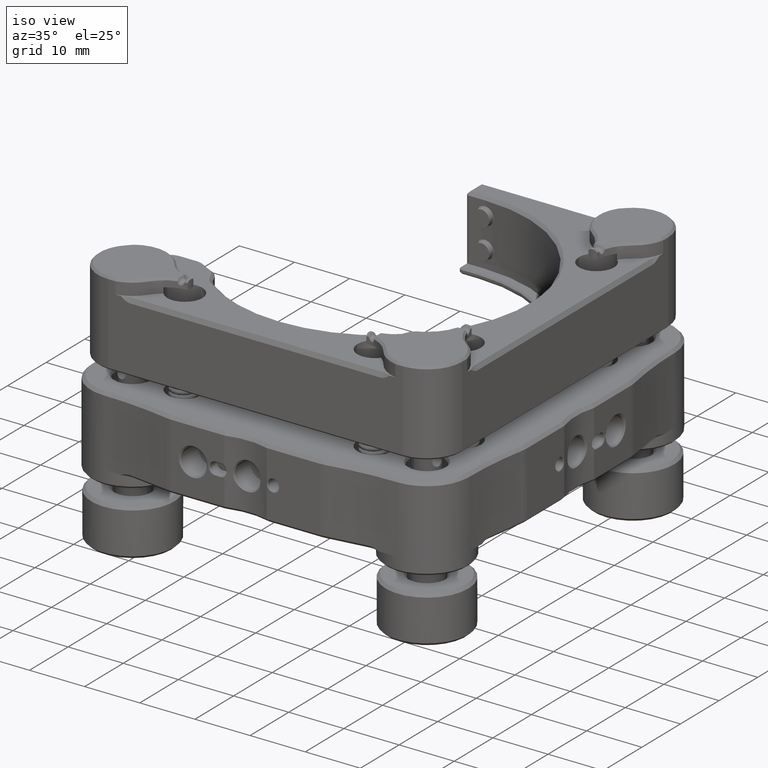
[diagram: clean part render]
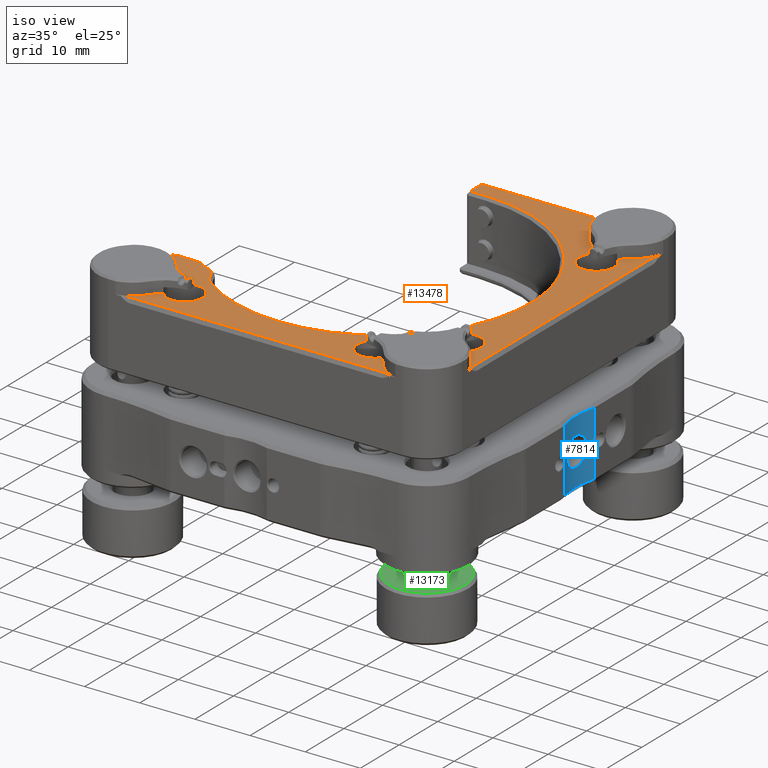
[diagram: same view with three faces highlighted in distinct colors, each labeled with its STEP entity id]
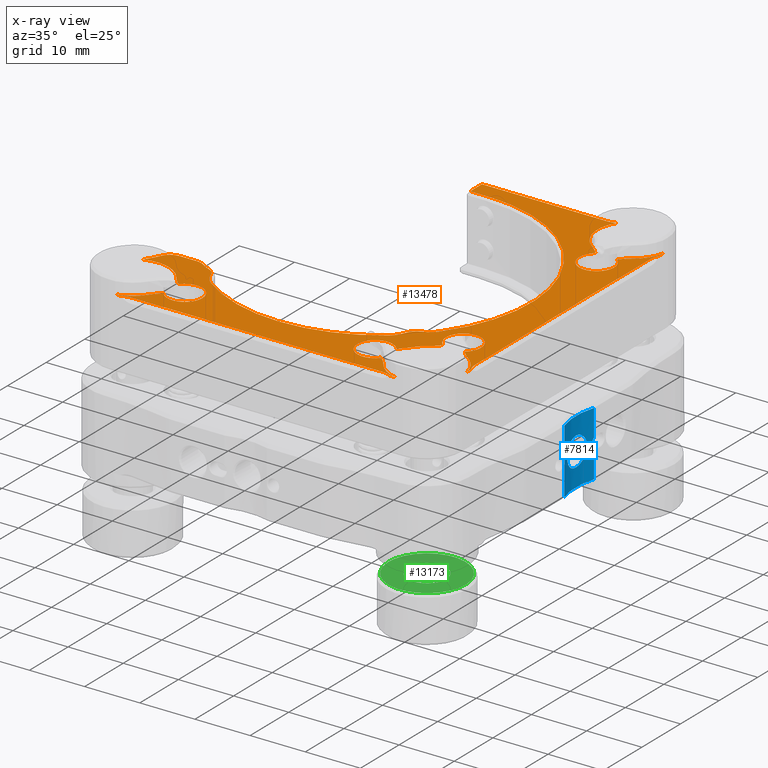
[diagram: x-ray of the same camera — body ghosted, the three highlighted faces saturated]
A machine part, iso view with three faces highlighted in distinct colors.
The next image is the same camera in x-ray (body ghosted, the three faces saturated) — at least one of them is partly hidden behind the body in this view.
Their STEP definitions:

[orange] entity #13478 — the highlighted planar face has unit normal (0, 0, 1).
#27 = LINE ( 'NONE', #2396, #8382 ) ;
#53 = DIRECTION ( 'NONE',  ( -0.000000000000000000, -0.000000000000000000, 1.000000000000000000 ) ) ;
#239 = DIRECTION ( 'NONE',  ( -0.000000000000000000, -0.000000000000000000, -1.000000000000000000 ) ) ;
#267 = CIRCLE ( 'NONE', #3803, 6.477000000000095348 ) ;
#361 = AXIS2_PLACEMENT_3D ( 'NONE', #13725, #23323, #1760 ) ;
#413 = VERTEX_POINT ( 'NONE', #27768 ) ;
#489 = ORIENTED_EDGE ( 'NONE', *, *, #4119, .T. ) ;
#510 = DIRECTION ( 'NONE',  ( -7.543225617020321194E-30, -2.891205793871004228E-15, 1.000000000000000000 ) ) ;
#523 = AXIS2_PLACEMENT_3D ( 'NONE', #1559, #22820, #1251 ) ;
#542 = DIRECTION ( 'NONE',  ( 1.000000000000000000, -1.541976423100244968E-15, 0.000000000000000000 ) ) ;
#629 = DIRECTION ( 'NONE',  ( 1.000000000000000000, -4.285251754767537330E-15, 0.000000000000000000 ) ) ;
#989 = AXIS2_PLACEMENT_3D ( 'NONE', #18957, #11860, #13906 ) ;
#1032 = ORIENTED_EDGE ( 'NONE', *, *, #6242, .T. ) ;
#1077 = DIRECTION ( 'NONE',  ( 1.000000000000000000, -2.312964634616563875E-15, 0.000000000000000000 ) ) ;
#1085 = CARTESIAN_POINT ( 'NONE',  ( -25.37656882689409699, 24.10924649506376127, -29.07081459346585461 ) ) ;
#1088 = DIRECTION ( 'NONE',  ( 1.000000000000000000, -3.642463991552343858E-15, 0.000000000000000000 ) ) ;
#1089 = DIRECTION ( 'NONE',  ( 1.000000000000000000, -2.348848108472521373E-15, 0.000000000000000000 ) ) ;
#1177 = CIRCLE ( 'NONE', #18777, 3.175000000000001155 ) ;
#1215 = ORIENTED_EDGE ( 'NONE', *, *, #26689, .T. ) ;
#1251 = DIRECTION ( 'NONE',  ( -1.000000000000000000, 2.731847993664259669E-15, 0.000000000000000000 ) ) ;
#1456 = PLANE ( 'NONE',  #20402 ) ;
#1470 = VERTEX_POINT ( 'NONE', #27202 ) ;
#1559 = CARTESIAN_POINT ( 'NONE',  ( -42.60368698403230070, 13.95924649506383375, -29.07081459346585461 ) ) ;
#1614 = ORIENTED_EDGE ( 'NONE', *, *, #28742, .T. ) ;
#1620 = EDGE_CURVE ( 'NONE', #19164, #29607, #16424, .T. ) ;
#1754 = ORIENTED_EDGE ( 'NONE', *, *, #21249, .T. ) ;
#1760 = DIRECTION ( 'NONE',  ( -5.551115123138712132E-15, -1.000000000000000000, 0.000000000000000000 ) ) ;
#1780 = CARTESIAN_POINT ( 'NONE',  ( 3.271752702193456486, 20.91881020938287250, -29.07081459346585461 ) ) ;
#1836 = CARTESIAN_POINT ( 'NONE',  ( -0.9846489658701987890, 7.609246495063739957, -29.07081459346582974 ) ) ;
#2002 = VERTEX_POINT ( 'NONE', #12231 ) ;
#2063 = AXIS2_PLACEMENT_3D ( 'NONE', #16874, #22043, #629 ) ;
#2166 = VERTEX_POINT ( 'NONE', #18055 ) ;
#2190 = AXIS2_PLACEMENT_3D ( 'NONE', #8922, #25758, #4194 ) ;
#2275 = ORIENTED_EDGE ( 'NONE', *, *, #8168, .T. ) ;
#2396 = CARTESIAN_POINT ( 'NONE',  ( -25.37656882689413962, 8.053747228677757164, -29.07081459346585461 ) ) ;
#2467 = CARTESIAN_POINT ( 'NONE',  ( -47.51815764817884258, 24.10924649506488748, -29.07081459344393792 ) ) ;
#2708 = DIRECTION ( 'NONE',  ( 1.000000000000000000, -1.606969408037776012E-15, 0.000000000000000000 ) ) ;
#2719 = DIRECTION ( 'NONE',  ( 1.000000000000000000, -2.142625877383704373E-15, 0.000000000000000000 ) ) ;
#2735 = ORIENTED_EDGE ( 'NONE', *, *, #2796, .T. ) ;
#2768 = CIRCLE ( 'NONE', #10291, 6.477000000000087354 ) ;
#2772 = CARTESIAN_POINT ( 'NONE',  ( -50.67311151741139241, 24.10924649505111717, -29.07081459345313235 ) ) ;
#2796 = EDGE_CURVE ( 'NONE', #9522, #4308, #21755, .T. ) ;
#2844 = DIRECTION ( 'NONE',  ( -0.000000000000000000, 0.000000000000000000, -1.000000000000000000 ) ) ;
#2989 = CARTESIAN_POINT ( 'NONE',  ( -9.453425345480399145, 21.19189407177596962, -29.07081459346585461 ) ) ;
#3038 = DIRECTION ( 'NONE',  ( 0.000000000000000000, -0.000000000000000000, 1.000000000000000000 ) ) ;
#3044 = AXIS2_PLACEMENT_3D ( 'NONE', #3649, #4253, #20482 ) ;
#3069 = CIRCLE ( 'NONE', #24669, 6.476999999999778268 ) ;
#3140 = CARTESIAN_POINT ( 'NONE',  ( 4.909754961462052592, 19.33267475435666327, -29.07081459346585817 ) ) ;
#3170 = AXIS2_PLACEMENT_3D ( 'NONE', #12200, #239, #14431 ) ;
#3348 = CIRCLE ( 'NONE', #16935, 6.476999999999842217 ) ;
#3378 = DIRECTION ( 'NONE',  ( -0.000000000000000000, -0.000000000000000000, -1.000000000000000000 ) ) ;
#3425 = EDGE_CURVE ( 'NONE', #28692, #2166, #12204, .T. ) ;
#3451 = DIRECTION ( 'NONE',  ( -0.000000000000000000, -0.000000000000000000, -1.000000000000000000 ) ) ;
#3544 = ORIENTED_EDGE ( 'NONE', *, *, #12090, .T. ) ;
#3649 = CARTESIAN_POINT ( 'NONE',  ( -5.959816375405918798, 76.02924649506374521, -29.07081459355032038 ) ) ;
#3693 = CARTESIAN_POINT ( 'NONE',  ( 7.643431173105946108, 40.62924649506368979, -29.07081459346585817 ) ) ;
#3728 = CARTESIAN_POINT ( 'NONE',  ( -0.6848903559816584830, 20.91881020938288316, -29.07081459346585461 ) ) ;
#3803 = AXIS2_PLACEMENT_3D ( 'NONE', #12018, #21625, #26027 ) ;
#3822 = CARTESIAN_POINT ( 'NONE',  ( -47.51815764817885679, 21.60924649506385009, -29.07081459343662999 ) ) ;
#3861 = CARTESIAN_POINT ( 'NONE',  ( -2.770568826894148184, 4.243746495063723145, -29.07081459346582974 ) ) ;
#4119 = EDGE_CURVE ( 'NONE', #16772, #20120, #10220, .T. ) ;
#4123 = ORIENTED_EDGE ( 'NONE', *, *, #13210, .T. ) ;
#4194 = DIRECTION ( 'NONE',  ( 1.000000000000000000, 1.071312938691902871E-15, 0.000000000000000000 ) ) ;
#4229 = CARTESIAN_POINT ( 'NONE',  ( 7.643431173106022491, 66.02291229118191040, -29.07081459346585817 ) ) ;
#4253 = DIRECTION ( 'NONE',  ( -0.000000000000000000, -0.000000000000000000, -1.000000000000000000 ) ) ;
#4308 = VERTEX_POINT ( 'NONE', #25049 ) ;
#4407 = DIRECTION ( 'NONE',  ( -2.609024107869117870E-15, -1.000000000000000000, -0.000000000000000000 ) ) ;
#4432 = LINE ( 'NONE', #21438, #21951 ) ;
#4510 = DIRECTION ( 'NONE',  ( 1.000000000000000000, 1.874797642710814444E-15, 0.000000000000000000 ) ) ;
#4547 = CIRCLE ( 'NONE', #3044, 5.500000000023407054 ) ;
#4881 = DIRECTION ( 'NONE',  ( 0.000000000000000000, -0.000000000000000000, 1.000000000000000000 ) ) ;
#4956 = CARTESIAN_POINT ( 'NONE',  ( -5.294736241196116744, 20.54741390936582590, -29.07081459349580399 ) ) ;
#4978 = AXIS2_PLACEMENT_3D ( 'NONE', #21767, #19405, #2719 ) ;
#5265 = EDGE_CURVE ( 'NONE', #20200, #15993, #22897, .T. ) ;
#5387 = CARTESIAN_POINT ( 'NONE',  ( -41.29971230830840767, 6.726598918351319512, -29.07081459346585461 ) ) ;
#5461 = DIRECTION ( 'NONE',  ( -0.000000000000000000, 0.000000000000000000, -1.000000000000000000 ) ) ;
#5480 = CARTESIAN_POINT ( 'NONE',  ( -3.604313086187576953, 8.053747228677714531, -29.07081459875576357 ) ) ;
#5630 = AXIS2_PLACEMENT_3D ( 'NONE', #4956, #19143, #14725 ) ;
#5700 = CARTESIAN_POINT ( 'NONE',  ( -2.770568979005195054, 8.053746861870703100, -29.07081459346582974 ) ) ;
#5739 = VERTEX_POINT ( 'NONE', #9701 ) ;
#5833 = CIRCLE ( 'NONE', #12378, 0.1000000000317413651 ) ;
#5946 = CIRCLE ( 'NONE', #989, 3.809999999999972964 ) ;
#6016 = VERTEX_POINT ( 'NONE', #12353 ) ;
#6060 = ORIENTED_EDGE ( 'NONE', *, *, #15322, .T. ) ;
#6144 = ORIENTED_EDGE ( 'NONE', *, *, #9689, .T. ) ;
#6242 = EDGE_CURVE ( 'NONE', #28013, #14276, #4547, .T. ) ;
#6304 = VERTEX_POINT ( 'NONE', #3140 ) ;
#6458 = EDGE_CURVE ( 'NONE', #15250, #27606, #22635, .T. ) ;
#6636 = ORIENTED_EDGE ( 'NONE', *, *, #11826, .T. ) ;
#6662 = CIRCLE ( 'NONE', #22218, 6.477000000000095348 ) ;
#6869 = CIRCLE ( 'NONE', #23460, 4.500000000021285196 ) ;
#6911 = LINE ( 'NONE', #24507, #7960 ) ;
#6912 = DIRECTION ( 'NONE',  ( -1.000000000000000000, 2.731847993664262430E-15, 0.000000000000000000 ) ) ;
#6967 = VERTEX_POINT ( 'NONE', #5700 ) ;
#6971 = CARTESIAN_POINT ( 'NONE',  ( -41.29971230830830820, 21.19189407177623252, -29.07081459346585461 ) ) ;
#7120 = CARTESIAN_POINT ( 'NONE',  ( -28.37656882692069260, 67.62924649506379637, -29.07081459349257813 ) ) ;
#7136 = ORIENTED_EDGE ( 'NONE', *, *, #10882, .T. ) ;
#7256 = EDGE_CURVE ( 'NONE', #6304, #19053, #28194, .T. ) ;
#7275 = VECTOR ( 'NONE', #11487, 1000.000000000000000 ) ;
#7283 = VERTEX_POINT ( 'NONE', #28981 ) ;
#7419 = EDGE_CURVE ( 'NONE', #20815, #28013, #3069, .T. ) ;
#7475 = DIRECTION ( 'NONE',  ( 1.000000000000000000, -1.822325254271423686E-15, 0.000000000000000000 ) ) ;
#7596 = CARTESIAN_POINT ( 'NONE',  ( -50.67311151741139952, 21.60924649506385720, -29.07081459344041008 ) ) ;
#7693 = AXIS2_PLACEMENT_3D ( 'NONE', #11570, #25885, #12302 ) ;
#7716 = AXIS2_PLACEMENT_3D ( 'NONE', #7596, #53, #26638 ) ;
#7770 = ORIENTED_EDGE ( 'NONE', *, *, #5265, .T. ) ;
#7841 = CARTESIAN_POINT ( 'NONE',  ( 1.293431173106017962, 67.29924649506342860, -29.07081459346585461 ) ) ;
#7882 = DIRECTION ( 'NONE',  ( 1.000000000000000000, -2.142625877383809291E-15, 0.000000000000000000 ) ) ;
#7921 = ORIENTED_EDGE ( 'NONE', *, *, #1620, .T. ) ;
#7960 = VECTOR ( 'NONE', #17287, 1000.000000000000000 ) ;
#7999 = CIRCLE ( 'NONE', #4978, 6.477000000000095348 ) ;
#8013 = DIRECTION ( 'NONE',  ( -0.000000000000000000, -0.000000000000000000, -1.000000000000000000 ) ) ;
#8039 = VERTEX_POINT ( 'NONE', #14312 ) ;
#8120 = DIRECTION ( 'NONE',  ( 1.000000000000000000, -2.544368229393152073E-15, 0.000000000000000000 ) ) ;
#8168 = EDGE_CURVE ( 'NONE', #15993, #20002, #20676, .T. ) ;
#8216 = CIRCLE ( 'NONE', #28824, 3.810000000000007603 ) ;
#8239 = ORIENTED_EDGE ( 'NONE', *, *, #17598, .T. ) ;
#8278 = ORIENTED_EDGE ( 'NONE', *, *, #29366, .T. ) ;
#8374 = CIRCLE ( 'NONE', #18422, 13.32700000000001950 ) ;
#8382 = VECTOR ( 'NONE', #28680, 1000.000000000000000 ) ;
#8413 = DIRECTION ( 'NONE',  ( 1.000000000000000000, -2.579514462419041539E-15, 0.000000000000000000 ) ) ;
#8437 = EDGE_CURVE ( 'NONE', #2002, #19210, #27962, .T. ) ;
#8480 = CARTESIAN_POINT ( 'NONE',  ( 7.643431173106019827, 65.02116635608771844, -29.07081459346583685 ) ) ;
#8691 = AXIS2_PLACEMENT_3D ( 'NONE', #15417, #22333, #17784 ) ;
#8729 = CARTESIAN_POINT ( 'NONE',  ( -48.05209083044751139, 8.053747228677812231, -29.07081459346585461 ) ) ;
#8797 = EDGE_CURVE ( 'NONE', #22550, #12479, #11147, .T. ) ;
#8922 = CARTESIAN_POINT ( 'NONE',  ( -52.04656882689411646, 13.95924649506385862, -29.07081459346585461 ) ) ;
#9042 = ORIENTED_EDGE ( 'NONE', *, *, #9895, .T. ) ;
#9115 = EDGE_CURVE ( 'NONE', #13960, #15250, #17727, .T. ) ;
#9280 = LINE ( 'NONE', #9591, #7275 ) ;
#9292 = EDGE_CURVE ( 'NONE', #13387, #27152, #6662, .T. ) ;
#9351 = ORIENTED_EDGE ( 'NONE', *, *, #15337, .T. ) ;
#9426 = CARTESIAN_POINT ( 'NONE',  ( -5.959816375405938338, 70.52924649506286414, -29.07081459354341391 ) ) ;
#9522 = VERTEX_POINT ( 'NONE', #30065 ) ;
#9536 = DIRECTION ( 'NONE',  ( -7.543225614161767615E-30, -2.891205792775363205E-15, 1.000000000000000000 ) ) ;
#9544 = ORIENTED_EDGE ( 'NONE', *, *, #18400, .T. ) ;
#9591 = CARTESIAN_POINT ( 'NONE',  ( -25.37656882689413251, 7.609246495063796800, -29.07081459346585461 ) ) ;
#9621 = AXIS2_PLACEMENT_3D ( 'NONE', #7841, #5461, #24670 ) ;
#9689 = EDGE_CURVE ( 'NONE', #8039, #7283, #19709, .T. ) ;
#9701 = CARTESIAN_POINT ( 'NONE',  ( -54.50988325132582446, 19.94953956355256963, -29.07081459346585817 ) ) ;
#9747 = VERTEX_POINT ( 'NONE', #24378 ) ;
#9895 = EDGE_CURVE ( 'NONE', #26467, #6304, #11700, .T. ) ;
#10220 = CIRCLE ( 'NONE', #7716, 2.499999999959444441 ) ;
#10291 = AXIS2_PLACEMENT_3D ( 'NONE', #29675, #12992, #8120 ) ;
#10326 = ORIENTED_EDGE ( 'NONE', *, *, #24325, .T. ) ;
#10514 = VERTEX_POINT ( 'NONE', #18046 ) ;
#10557 = ORIENTED_EDGE ( 'NONE', *, *, #26868, .T. ) ;
#10678 = EDGE_CURVE ( 'NONE', #24723, #24290, #21276, .T. ) ;
#10680 = EDGE_CURVE ( 'NONE', #413, #30258, #17255, .T. ) ;
#10825 = DIRECTION ( 'NONE',  ( 1.000000000000000000, -2.678282346729630170E-15, 0.000000000000000000 ) ) ;
#10828 = CIRCLE ( 'NONE', #18880, 6.477000000000093571 ) ;
#10882 = EDGE_CURVE ( 'NONE', #1470, #15402, #13733, .T. ) ;
#10903 = EDGE_CURVE ( 'NONE', #29607, #20200, #8216, .T. ) ;
#11147 = CIRCLE ( 'NONE', #16181, 2.500000000017571722 ) ;
#11164 = CIRCLE ( 'NONE', #5630, 2.499999999986798560 ) ;
#11395 = VECTOR ( 'NONE', #16113, 1000.000000000000000 ) ;
#11487 = DIRECTION ( 'NONE',  ( 1.000000000000000000, -2.348848108472521373E-15, 0.000000000000000000 ) ) ;
#11570 = CARTESIAN_POINT ( 'NONE',  ( 1.293431173105989540, 57.85636465220191837, -29.07081459346585461 ) ) ;
#11616 = CARTESIAN_POINT ( 'NONE',  ( -8.149450669755944787, 13.95924649506374315, -29.07081459346585461 ) ) ;
#11668 = EDGE_CURVE ( 'NONE', #2166, #8039, #11164, .T. ) ;
#11700 = CIRCLE ( 'NONE', #24760, 6.477000000000095348 ) ;
#11743 = CIRCLE ( 'NONE', #26239, 4.499999999971547204 ) ;
#11826 = EDGE_CURVE ( 'NONE', #27565, #12479, #11743, .T. ) ;
#11860 = DIRECTION ( 'NONE',  ( -0.000000000000000000, -0.000000000000000000, -1.000000000000000000 ) ) ;
#11895 = CARTESIAN_POINT ( 'NONE',  ( -28.27656882689397833, 70.42924649506379353, -29.07081459346246177 ) ) ;
#12018 = CARTESIAN_POINT ( 'NONE',  ( -5.939216403606465633, 56.55238997647769850, -29.07081459346585461 ) ) ;
#12019 = AXIS2_PLACEMENT_3D ( 'NONE', #2989, #4881, #14500 ) ;
#12090 = EDGE_CURVE ( 'NONE', #28159, #10514, #25857, .T. ) ;
#12134 = DIRECTION ( 'NONE',  ( 2.609024107869117870E-15, 1.000000000000000000, 0.000000000000000000 ) ) ;
#12200 = CARTESIAN_POINT ( 'NONE',  ( -7.440770796132543552, 27.21033636794350130, -29.07081459346477459 ) ) ;
#12204 = CIRCLE ( 'NONE', #3170, 4.500000000003045564 ) ;
#12231 = CARTESIAN_POINT ( 'NONE',  ( -48.19100511988407476, 8.048040688704025669, -29.07081459346584751 ) ) ;
#12302 = DIRECTION ( 'NONE',  ( -1.000000000000000000, 2.185478394931409786E-15, 0.000000000000000000 ) ) ;
#12343 = CARTESIAN_POINT ( 'NONE',  ( -47.98256913111625011, 8.053747233259000993, -29.07081459346585461 ) ) ;
#12353 = CARTESIAN_POINT ( 'NONE',  ( -28.37656882689226023, 70.42924649506379353, -29.07081459346415642 ) ) ;
#12378 = AXIS2_PLACEMENT_3D ( 'NONE', #11895, #9536, #16939 ) ;
#12479 = VERTEX_POINT ( 'NONE', #13520 ) ;
#12600 = CARTESIAN_POINT ( 'NONE',  ( -5.939216403606549122, 24.70610301364978056, -29.07081459346585461 ) ) ;
#12653 = DIRECTION ( 'NONE',  ( -0.000000000000000000, -0.000000000000000000, -1.000000000000000000 ) ) ;
#12765 = CARTESIAN_POINT ( 'NONE',  ( 7.643431173105946108, 40.62924649506368979, -29.07081459346585461 ) ) ;
#12992 = DIRECTION ( 'NONE',  ( 0.000000000000000000, -0.000000000000000000, 1.000000000000000000 ) ) ;
#13089 = CARTESIAN_POINT ( 'NONE',  ( -28.27656882689398898, 67.52924649503711407, -29.07081459349257813 ) ) ;
#13210 = EDGE_CURVE ( 'NONE', #30258, #20815, #267, .T. ) ;
#13387 = VERTEX_POINT ( 'NONE', #21776 ) ;
#13398 = EDGE_CURVE ( 'NONE', #27606, #17307, #10828, .T. ) ;
#13478 = ADVANCED_FACE ( 'NONE', ( #15783 ), #1456, .T. ) ;
#13505 = DIRECTION ( 'NONE',  ( 0.000000000000000000, -0.000000000000000000, 1.000000000000000000 ) ) ;
#13520 = CARTESIAN_POINT ( 'NONE',  ( -46.02061834995718925, 23.61108965830603168, -29.07081459343662999 ) ) ;
#13725 = CARTESIAN_POINT ( 'NONE',  ( -45.45840141259208877, 20.54741390936592538, -29.07081459349347341 ) ) ;
#13733 = CIRCLE ( 'NONE', #8691, 3.810000000000007603 ) ;
#13774 = VERTEX_POINT ( 'NONE', #7120 ) ;
#13906 = DIRECTION ( 'NONE',  ( 1.000000000000000000, 8.878505979408917484E-15, 0.000000000000000000 ) ) ;
#13925 = CARTESIAN_POINT ( 'NONE',  ( -4.079997086187190369, 17.57557028341965477, -29.07081459346585817 ) ) ;
#13960 = VERTEX_POINT ( 'NONE', #28979 ) ;
#14276 = VERTEX_POINT ( 'NONE', #9426 ) ;
#14312 = CARTESIAN_POINT ( 'NONE',  ( -7.674351404949971034, 21.31385482182085767, -29.07081459347575247 ) ) ;
#14431 = DIRECTION ( 'NONE',  ( 1.000000000000000000, -1.541976423089451576E-15, 0.000000000000000000 ) ) ;
#14482 = ORIENTED_EDGE ( 'NONE', *, *, #14705, .T. ) ;
#14500 = DIRECTION ( 'NONE',  ( 1.000000000000000000, -2.678282346729629776E-15, 0.000000000000000000 ) ) ;
#14507 = CIRCLE ( 'NONE', #19029, 26.90000000000001279 ) ;
#14524 = ORIENTED_EDGE ( 'NONE', *, *, #28954, .T. ) ;
#14543 = EDGE_CURVE ( 'NONE', #18761, #13387, #3348, .T. ) ;
#14674 = CARTESIAN_POINT ( 'NONE',  ( 1.293431173105881848, 13.95924649506371829, -29.07081459346585461 ) ) ;
#14705 = EDGE_CURVE ( 'NONE', #9747, #19016, #6869, .T. ) ;
#14725 = DIRECTION ( 'NONE',  ( -1.000000000000000000, 1.387778780788773996E-15, 0.000000000000000000 ) ) ;
#14732 = CARTESIAN_POINT ( 'NONE',  ( -52.04656882689411646, 13.95924649506385862, -29.07081459346585461 ) ) ;
#14745 = VERTEX_POINT ( 'NONE', #1836 ) ;
#14783 = ORIENTED_EDGE ( 'NONE', *, *, #10903, .T. ) ;
#15148 = DIRECTION ( 'NONE',  ( 2.999288106964013010E-15, 1.000000000000000000, 0.000000000000000000 ) ) ;
#15205 = AXIS2_PLACEMENT_3D ( 'NONE', #27042, #8013, #1077 ) ;
#15250 = VERTEX_POINT ( 'NONE', #25679 ) ;
#15258 = DIRECTION ( 'NONE',  ( -1.000000000000000000, 2.609024107869117870E-15, -0.000000000000000000 ) ) ;
#15261 = EDGE_CURVE ( 'NONE', #19016, #27565, #30511, .T. ) ;
#15288 = ORIENTED_EDGE ( 'NONE', *, *, #16452, .T. ) ;
#15322 = EDGE_CURVE ( 'NONE', #15402, #19164, #4432, .T. ) ;
#15337 = EDGE_CURVE ( 'NONE', #19210, #18935, #27, .T. ) ;
#15349 = CARTESIAN_POINT ( 'NONE',  ( -43.32504761313042962, 27.21440735216475559, -29.07081459349347341 ) ) ;
#15402 = VERTEX_POINT ( 'NONE', #24565 ) ;
#15417 = CARTESIAN_POINT ( 'NONE',  ( 11.00893117310589986, 18.02324649506370235, -29.07081459346582974 ) ) ;
#15599 = ORIENTED_EDGE ( 'NONE', *, *, #20257, .T. ) ;
#15783 = FACE_OUTER_BOUND ( 'NONE', #16540, .T. ) ;
#15993 = VERTEX_POINT ( 'NONE', #4229 ) ;
#16009 = DIRECTION ( 'NONE',  ( -0.000000000000000000, 0.000000000000000000, -1.000000000000000000 ) ) ;
#16095 = DIRECTION ( 'NONE',  ( 0.000000000000000000, 0.000000000000000000, -1.000000000000000000 ) ) ;
#16113 = DIRECTION ( 'NONE',  ( 1.000000000000000000, -2.609024107869117870E-15, 0.000000000000000000 ) ) ;
#16181 = AXIS2_PLACEMENT_3D ( 'NONE', #3822, #16095, #20811 ) ;
#16218 = CARTESIAN_POINT ( 'NONE',  ( 4.909754961462167167, 61.92581823577068434, -29.07081459346585106 ) ) ;
#16219 = CARTESIAN_POINT ( 'NONE',  ( 7.204636979465808722, 63.44368278805362138, -29.07081459346584751 ) ) ;
#16424 = B_SPLINE_CURVE_WITH_KNOTS ( 'NONE', 3,
 ( #17934, #17783, #27513, #29572 ),
 .UNSPECIFIED., .F., .F.,
 ( 4, 4 ),
 ( 0.000000000000000000, 1.000000000000000000 ),
 .UNSPECIFIED. ) ;
#16452 = EDGE_CURVE ( 'NONE', #5739, #13960, #16787, .T. ) ;
#16511 = EDGE_CURVE ( 'NONE', #27152, #26467, #1177, .T. ) ;
#16540 = EDGE_LOOP ( 'NONE', ( #28410, #26080, #489, #23605, #15288, #30616, #21334, #16959, #1614, #8239, #19161, #22921, #9351, #10557, #9544, #15599, #20322, #25797, #2735, #24257, #19273, #27072, #29317, #9042, #18656, #8278, #7136, #6060, #7921, #14783, #7770, #2275, #18346, #20356, #4123, #27880, #1032, #10326, #1754, #29801, #24145, #3544, #14524, #26987, #27501, #6144, #1215, #14482, #27890, #6636 ) ) ;
#16569 = CIRCLE ( 'NONE', #25589, 6.476999999999747182 ) ;
#16660 = DIRECTION ( 'NONE',  ( 1.682503854762082244E-31, 6.448786156047605819E-17, -1.000000000000000000 ) ) ;
#16696 = LINE ( 'NONE', #20937, #26054 ) ;
#16772 = VERTEX_POINT ( 'NONE', #2772 ) ;
#16787 = CIRCLE ( 'NONE', #2190, 6.476999999999788926 ) ;
#16874 = CARTESIAN_POINT ( 'NONE',  ( 1.293431173105881848, 13.95924649506371829, -29.07081459346585461 ) ) ;
#16935 = AXIS2_PLACEMENT_3D ( 'NONE', #30642, #16009, #4510 ) ;
#16939 = DIRECTION ( 'NONE',  ( 0.000000000000000000, -1.000000000000000000, 0.000000000000000000 ) ) ;
#16959 = ORIENTED_EDGE ( 'NONE', *, *, #13398, .T. ) ;
#17030 = DIRECTION ( 'NONE',  ( 0.000000000000000000, -0.000000000000000000, 1.000000000000000000 ) ) ;
#17068 = CIRCLE ( 'NONE', #19091, 0.1000000000317413651 ) ;
#17255 = CIRCLE ( 'NONE', #7693, 3.175000000000001155 ) ;
#17287 = DIRECTION ( 'NONE',  ( 1.000000000000000000, -2.609024107869117870E-15, 0.000000000000000000 ) ) ;
#17307 = VERTEX_POINT ( 'NONE', #20507 ) ;
#17363 = CARTESIAN_POINT ( 'NONE',  ( -28.27656882689398898, 67.62924649506379637, -29.07081459351930874 ) ) ;
#17396 = CARTESIAN_POINT ( 'NONE',  ( -65.18304779747187183, 27.93029689421310380, -29.07081459346585461 ) ) ;
#17580 = DIRECTION ( 'NONE',  ( 1.000000000000000000, -5.236041987856522350E-15, 0.000000000000000000 ) ) ;
#17584 = AXIS2_PLACEMENT_3D ( 'NONE', #20372, #29975, #8413 ) ;
#17598 = EDGE_CURVE ( 'NONE', #30208, #20684, #9280, .T. ) ;
#17727 = CIRCLE ( 'NONE', #24241, 6.477000000000093571 ) ;
#17783 = CARTESIAN_POINT ( 'NONE',  ( 7.198930439492035482, 63.30476849861715749, -29.07081459346585461 ) ) ;
#17784 = DIRECTION ( 'NONE',  ( 1.000000000000000000, 2.731847993664257696E-15, 0.000000000000000000 ) ) ;
#17872 = DIRECTION ( 'NONE',  ( 2.999288106964013010E-15, 1.000000000000000000, 0.000000000000000000 ) ) ;
#17934 = CARTESIAN_POINT ( 'NONE',  ( 7.198930434910851162, 63.23524679928581094, -29.07081459346585461 ) ) ;
#17937 = CARTESIAN_POINT ( 'NONE',  ( -25.37656882689413251, 7.609246495063796800, -29.07081459346585817 ) ) ;
#18043 = DIRECTION ( 'NONE',  ( -0.000000000000000000, -0.000000000000000000, -1.000000000000000000 ) ) ;
#18046 = CARTESIAN_POINT ( 'NONE',  ( -25.37656882689398685, 67.52924649506383048, -29.07081459346584396 ) ) ;
#18055 = CARTESIAN_POINT ( 'NONE',  ( -6.061177153658693584, 22.92702907312177274, -29.07081459348028929 ) ) ;
#18139 = DIRECTION ( 'NONE',  ( 1.000000000000000000, -2.609024107869117870E-15, 0.000000000000000000 ) ) ;
#18295 = DIRECTION ( 'NONE',  ( 0.000000000000000000, 0.000000000000000000, 1.000000000000000000 ) ) ;
#18340 = CARTESIAN_POINT ( 'NONE',  ( -47.98256913111625011, 8.053747233259000993, -29.07081459346585461 ) ) ;
#18346 = ORIENTED_EDGE ( 'NONE', *, *, #30675, .T. ) ;
#18380 = CARTESIAN_POINT ( 'NONE',  ( 8.526078749818367442, 24.70610301364974504, -29.07081459346585461 ) ) ;
#18400 = EDGE_CURVE ( 'NONE', #6967, #14745, #29374, .T. ) ;
#18422 = AXIS2_PLACEMENT_3D ( 'NONE', #17396, #12653, #7475 ) ;
#18598 = EDGE_CURVE ( 'NONE', #24290, #9522, #2768, .T. ) ;
#18656 = ORIENTED_EDGE ( 'NONE', *, *, #7256, .T. ) ;
#18668 = CARTESIAN_POINT ( 'NONE',  ( -50.77023462301259826, 7.609246495063856308, -29.07081459346585461 ) ) ;
#18761 = VERTEX_POINT ( 'NONE', #13925 ) ;
#18777 = AXIS2_PLACEMENT_3D ( 'NONE', #23718, #25915, #25607 ) ;
#18880 = AXIS2_PLACEMENT_3D ( 'NONE', #5387, #3038, #29471 ) ;
#18935 = VERTEX_POINT ( 'NONE', #5480 ) ;
#18957 = CARTESIAN_POINT ( 'NONE',  ( -47.98256882689414482, 4.243746495063827062, -29.07081459346582974 ) ) ;
#19016 = VERTEX_POINT ( 'NONE', #28288 ) ;
#19029 = AXIS2_PLACEMENT_3D ( 'NONE', #21837, #16660, #21540 ) ;
#19053 = VERTEX_POINT ( 'NONE', #25460 ) ;
#19091 = AXIS2_PLACEMENT_3D ( 'NONE', #17363, #510, #20021 ) ;
#19143 = DIRECTION ( 'NONE',  ( -0.000000000000000000, -0.000000000000000000, 1.000000000000000000 ) ) ;
#19161 = ORIENTED_EDGE ( 'NONE', *, *, #29049, .T. ) ;
#19164 = VERTEX_POINT ( 'NONE', #30340 ) ;
#19210 = VERTEX_POINT ( 'NONE', #12343 ) ;
#19273 = ORIENTED_EDGE ( 'NONE', *, *, #14543, .T. ) ;
#19405 = DIRECTION ( 'NONE',  ( 0.000000000000000000, -0.000000000000000000, 1.000000000000000000 ) ) ;
#19709 = CIRCLE ( 'NONE', #15205, 4.500000000037313264 ) ;
#19900 = CARTESIAN_POINT ( 'NONE',  ( -44.69648934135977925, 22.92848299610905372, -29.07081459349347341 ) ) ;
#20002 = VERTEX_POINT ( 'NONE', #16218 ) ;
#20021 = DIRECTION ( 'NONE',  ( 0.000000000000000000, -1.000000000000000000, 0.000000000000000000 ) ) ;
#20120 = VERTEX_POINT ( 'NONE', #26747 ) ;
#20200 = VERTEX_POINT ( 'NONE', #8480 ) ;
#20257 = EDGE_CURVE ( 'NONE', #14745, #24723, #24844, .T. ) ;
#20322 = ORIENTED_EDGE ( 'NONE', *, *, #10678, .T. ) ;
#20356 = ORIENTED_EDGE ( 'NONE', *, *, #10680, .T. ) ;
#20372 = CARTESIAN_POINT ( 'NONE',  ( -25.37656882689405080, 40.62924649506379637, -29.07081459346585106 ) ) ;
#20402 = AXIS2_PLACEMENT_3D ( 'NONE', #30397, #18295, #18139 ) ;
#20482 = DIRECTION ( 'NONE',  ( 1.000000000000000000, -2.523234146864617333E-15, 0.000000000000000000 ) ) ;
#20507 = CARTESIAN_POINT ( 'NONE',  ( -46.67314056760140772, 10.34292270670765923, -29.07081459346585817 ) ) ;
#20536 = VERTEX_POINT ( 'NONE', #22964 ) ;
#20629 = LINE ( 'NONE', #12765, #23548 ) ;
#20676 = CIRCLE ( 'NONE', #9621, 6.476999999999751623 ) ;
#20684 = VERTEX_POINT ( 'NONE', #28624 ) ;
#20811 = DIRECTION ( 'NONE',  ( -1.000000000000000000, 2.775557561543382821E-15, 0.000000000000000000 ) ) ;
#20815 = VERTEX_POINT ( 'NONE', #22457 ) ;
#20937 = CARTESIAN_POINT ( 'NONE',  ( -28.37656882689395843, 71.10870448104121522, -29.07081459346585461 ) ) ;
#21108 = CIRCLE ( 'NONE', #17584, 26.90000000000002700 ) ;
#21201 = DIRECTION ( 'NONE',  ( -0.000000000000000000, -0.000000000000000000, -1.000000000000000000 ) ) ;
#21249 = EDGE_CURVE ( 'NONE', #20536, #6016, #5833, .T. ) ;
#21276 = CIRCLE ( 'NONE', #28306, 6.477000000000104230 ) ;
#21334 = ORIENTED_EDGE ( 'NONE', *, *, #6458, .T. ) ;
#21438 = CARTESIAN_POINT ( 'NONE',  ( 7.198930439492056799, 71.10870448104112995, -29.07081459346585461 ) ) ;
#21540 = DIRECTION ( 'NONE',  ( 2.579514462419042722E-15, 1.000000000000000000, 1.289757231209521410E-16 ) ) ;
#21625 = DIRECTION ( 'NONE',  ( 0.000000000000000000, -0.000000000000000000, 1.000000000000000000 ) ) ;
#21755 = CIRCLE ( 'NONE', #25769, 3.175000000000000711 ) ;
#21767 = CARTESIAN_POINT ( 'NONE',  ( 8.526078749818449154, 56.55238997647766297, -29.07081459346585461 ) ) ;
#21776 = CARTESIAN_POINT ( 'NONE',  ( -2.322892615250254700, 19.33267475435666682, -29.07081459346585461 ) ) ;
#21837 = CARTESIAN_POINT ( 'NONE',  ( -25.37656882689405080, 40.62924649506379637, -29.07081459346585106 ) ) ;
#21951 = VECTOR ( 'NONE', #12134, 1000.000000000000000 ) ;
#21967 = VECTOR ( 'NONE', #30190, 1000.000000000000000 ) ;
#22043 = DIRECTION ( 'NONE',  ( -0.000000000000000000, 0.000000000000000000, -1.000000000000000000 ) ) ;
#22218 = AXIS2_PLACEMENT_3D ( 'NONE', #12600, #29443, #25030 ) ;
#22333 = DIRECTION ( 'NONE',  ( -0.000000000000000000, -0.000000000000000000, -1.000000000000000000 ) ) ;
#22335 = AXIS2_PLACEMENT_3D ( 'NONE', #3861, #18043, #17580 ) ;
#22457 = CARTESIAN_POINT ( 'NONE',  ( -2.322892615250171211, 61.92581823577068434, -29.07081459346585106 ) ) ;
#22491 = LINE ( 'NONE', #22959, #29516 ) ;
#22550 = VERTEX_POINT ( 'NONE', #2467 ) ;
#22635 = CIRCLE ( 'NONE', #523, 3.175000000000004263 ) ;
#22647 = LINE ( 'NONE', #1085, #21967 ) ;
#22820 = DIRECTION ( 'NONE',  ( 0.000000000000000000, 0.000000000000000000, -1.000000000000000000 ) ) ;
#22897 = LINE ( 'NONE', #3693, #23129 ) ;
#22921 = ORIENTED_EDGE ( 'NONE', *, *, #8437, .T. ) ;
#22959 = CARTESIAN_POINT ( 'NONE',  ( -25.37656882689397619, 70.52924649506377364, -29.07081459346585461 ) ) ;
#22962 = CARTESIAN_POINT ( 'NONE',  ( 11.00893117310601887, 63.23524649506369144, -29.07081459346582974 ) ) ;
#22964 = CARTESIAN_POINT ( 'NONE',  ( -28.27656882689397833, 70.52924649506208254, -29.07081459346415642 ) ) ;
#23129 = VECTOR ( 'NONE', #17872, 1000.000000000000000 ) ;
#23323 = DIRECTION ( 'NONE',  ( -1.508645123197967882E-30, -5.782411586952071939E-16, 1.000000000000000000 ) ) ;
#23460 = AXIS2_PLACEMENT_3D ( 'NONE', #25754, #21201, #28268 ) ;
#23548 = VECTOR ( 'NONE', #15148, 1000.000000000000000 ) ;
#23605 = ORIENTED_EDGE ( 'NONE', *, *, #26092, .T. ) ;
#23718 = CARTESIAN_POINT ( 'NONE',  ( 1.293431173105906717, 23.40212833792555003, -29.07081459346585461 ) ) ;
#23747 = EDGE_CURVE ( 'NONE', #6016, #13774, #16696, .T. ) ;
#24020 = DIRECTION ( 'NONE',  ( 1.000000000000000000, -3.481767050748706615E-15, 0.000000000000000000 ) ) ;
#24124 = CARTESIAN_POINT ( 'NONE',  ( -4.127949205457468018, 70.84327863246340939, -29.07081459353103625 ) ) ;
#24145 = ORIENTED_EDGE ( 'NONE', *, *, #28041, .T. ) ;
#24155 = EDGE_CURVE ( 'NONE', #22550, #16772, #22647, .T. ) ;
#24241 = AXIS2_PLACEMENT_3D ( 'NONE', #6971, #17030, #26614 ) ;
#24257 = ORIENTED_EDGE ( 'NONE', *, *, #30938, .T. ) ;
#24290 = VERTEX_POINT ( 'NONE', #25461 ) ;
#24325 = EDGE_CURVE ( 'NONE', #14276, #20536, #22491, .T. ) ;
#24378 = CARTESIAN_POINT ( 'NONE',  ( -41.49124214919260112, 19.09027475280539932, -29.07081459349624808 ) ) ;
#24507 = CARTESIAN_POINT ( 'NONE',  ( -25.37656882689413962, 8.053747228677771375, -29.07081459346585461 ) ) ;
#24565 = CARTESIAN_POINT ( 'NONE',  ( 7.198931173105904691, 18.02324664717432512, -29.07081459346584396 ) ) ;
#24669 = AXIS2_PLACEMENT_3D ( 'NONE', #29435, #2844, #7882 ) ;
#24670 = DIRECTION ( 'NONE',  ( 1.000000000000000000, -2.142625877383817969E-15, 0.000000000000000000 ) ) ;
#24723 = VERTEX_POINT ( 'NONE', #27010 ) ;
#24760 = AXIS2_PLACEMENT_3D ( 'NONE', #18380, #13505, #10825 ) ;
#24844 = LINE ( 'NONE', #17937, #25927 ) ;
#25030 = DIRECTION ( 'NONE',  ( 1.000000000000000000, -2.678282346729630170E-15, 0.000000000000000000 ) ) ;
#25049 = CARTESIAN_POINT ( 'NONE',  ( -5.666132541213245055, 15.93756802415125939, -29.07081459346585461 ) ) ;
#25460 = CARTESIAN_POINT ( 'NONE',  ( 7.643431173105870613, 15.23558069894581912, -29.07081459346585461 ) ) ;
#25461 = CARTESIAN_POINT ( 'NONE',  ( -4.079997086187277411, 10.34292270670741409, -29.07081459346585106 ) ) ;
#25583 = CIRCLE ( 'NONE', #12019, 6.477000000000097124 ) ;
#25589 = AXIS2_PLACEMENT_3D ( 'NONE', #14732, #29055, #24020 ) ;
#25607 = DIRECTION ( 'NONE',  ( -1.000000000000000000, 2.185478394931409786E-15, 0.000000000000000000 ) ) ;
#25679 = CARTESIAN_POINT ( 'NONE',  ( -45.08700511257507770, 15.93756802415125939, -29.07081459346585461 ) ) ;
#25754 = CARTESIAN_POINT ( 'NONE',  ( -38.79547895401441338, 22.69344846430232820, -29.07081459349347341 ) ) ;
#25758 = DIRECTION ( 'NONE',  ( -0.000000000000000000, 0.000000000000000000, -1.000000000000000000 ) ) ;
#25769 = AXIS2_PLACEMENT_3D ( 'NONE', #11616, #28133, #6912 ) ;
#25797 = ORIENTED_EDGE ( 'NONE', *, *, #18598, .T. ) ;
#25857 = LINE ( 'NONE', #28062, #11395 ) ;
#25885 = DIRECTION ( 'NONE',  ( 0.000000000000000000, 0.000000000000000000, -1.000000000000000000 ) ) ;
#25915 = DIRECTION ( 'NONE',  ( 0.000000000000000000, 0.000000000000000000, -1.000000000000000000 ) ) ;
#25927 = VECTOR ( 'NONE', #1089, 1000.000000000000000 ) ;
#26027 = DIRECTION ( 'NONE',  ( 1.000000000000000000, -2.142625877383704373E-15, 0.000000000000000000 ) ) ;
#26054 = VECTOR ( 'NONE', #4407, 1000.000000000000000 ) ;
#26080 = ORIENTED_EDGE ( 'NONE', *, *, #24155, .T. ) ;
#26092 = EDGE_CURVE ( 'NONE', #20120, #5739, #8374, .T. ) ;
#26239 = AXIS2_PLACEMENT_3D ( 'NONE', #15349, #3378, #542 ) ;
#26329 = CARTESIAN_POINT ( 'NONE',  ( -0.6848903559815634479, 60.33968278074458169, -29.07081459346585461 ) ) ;
#26467 = VERTEX_POINT ( 'NONE', #1780 ) ;
#26614 = DIRECTION ( 'NONE',  ( 1.000000000000000000, -2.678282346729630959E-15, 0.000000000000000000 ) ) ;
#26638 = DIRECTION ( 'NONE',  ( -1.000000000000000000, 0.000000000000000000, 0.000000000000000000 ) ) ;
#26689 = EDGE_CURVE ( 'NONE', #7283, #9747, #14507, .T. ) ;
#26747 = CARTESIAN_POINT ( 'NONE',  ( -52.96507087163394800, 22.60770646836586550, -29.07081459345313235 ) ) ;
#26868 = EDGE_CURVE ( 'NONE', #18935, #6967, #6911, .T. ) ;
#26987 = ORIENTED_EDGE ( 'NONE', *, *, #3425, .T. ) ;
#27010 = CARTESIAN_POINT ( 'NONE',  ( 0.01709696922316400122, 7.609246495063737292, -29.07081459346585817 ) ) ;
#27042 = CARTESIAN_POINT ( 'NONE',  ( -11.95765869977379658, 22.69344846430225004, -29.07081459346625607 ) ) ;
#27072 = ORIENTED_EDGE ( 'NONE', *, *, #9292, .T. ) ;
#27152 = VERTEX_POINT ( 'NONE', #3728 ) ;
#27202 = CARTESIAN_POINT ( 'NONE',  ( 7.643431173105873278, 16.23732663403974286, -29.07081459346584396 ) ) ;
#27289 = CARTESIAN_POINT ( 'NONE',  ( -45.08700511257505639, 11.98092496597638679, -29.07081459346585461 ) ) ;
#27501 = ORIENTED_EDGE ( 'NONE', *, *, #11668, .T. ) ;
#27513 = CARTESIAN_POINT ( 'NONE',  ( 7.200832619483294117, 63.37424716153976334, -29.07081459346585461 ) ) ;
#27565 = VERTEX_POINT ( 'NONE', #19900 ) ;
#27606 = VERTEX_POINT ( 'NONE', #27289 ) ;
#27768 = CARTESIAN_POINT ( 'NONE',  ( 3.271752702193566620, 60.33968278074457459, -29.07081459346585461 ) ) ;
#27880 = ORIENTED_EDGE ( 'NONE', *, *, #7419, .T. ) ;
#27890 = ORIENTED_EDGE ( 'NONE', *, *, #15261, .T. ) ;
#27962 = B_SPLINE_CURVE_WITH_KNOTS ( 'NONE', 3,
 ( #30289, #30611, #8729, #18340 ),
 .UNSPECIFIED., .F., .F.,
 ( 4, 4 ),
 ( 0.000000000000000000, 1.000000000000000000 ),
 .UNSPECIFIED. ) ;
#28013 = VERTEX_POINT ( 'NONE', #24124 ) ;
#28041 = EDGE_CURVE ( 'NONE', #13774, #28159, #17068, .T. ) ;
#28062 = CARTESIAN_POINT ( 'NONE',  ( -25.37656882689398330, 67.52924649506384469, -29.07081459346585461 ) ) ;
#28133 = DIRECTION ( 'NONE',  ( 0.000000000000000000, 0.000000000000000000, -1.000000000000000000 ) ) ;
#28159 = VERTEX_POINT ( 'NONE', #13089 ) ;
#28194 = CIRCLE ( 'NONE', #2063, 6.476999999999900837 ) ;
#28268 = DIRECTION ( 'NONE',  ( 1.000000000000000000, 0.000000000000000000, 0.000000000000000000 ) ) ;
#28288 = CARTESIAN_POINT ( 'NONE',  ( -43.07878624891329622, 21.31385482183145541, -29.07081459346505170 ) ) ;
#28306 = AXIS2_PLACEMENT_3D ( 'NONE', #14674, #30779, #2708 ) ;
#28410 = ORIENTED_EDGE ( 'NONE', *, *, #8797, .F. ) ;
#28624 = CARTESIAN_POINT ( 'NONE',  ( -49.76848868791802971, 7.609246495063853644, -29.07081459346584396 ) ) ;
#28680 = DIRECTION ( 'NONE',  ( 1.000000000000000000, -2.609024107869117870E-15, 0.000000000000000000 ) ) ;
#28692 = VERTEX_POINT ( 'NONE', #29737 ) ;
#28742 = EDGE_CURVE ( 'NONE', #17307, #30208, #16569, .T. ) ;
#28824 = AXIS2_PLACEMENT_3D ( 'NONE', #22962, #3451, #1088 ) ;
#28954 = EDGE_CURVE ( 'NONE', #10514, #28692, #21108, .T. ) ;
#28979 = CARTESIAN_POINT ( 'NONE',  ( -46.67314056760132956, 17.57557028341999938, -29.07081459346585817 ) ) ;
#28981 = CARTESIAN_POINT ( 'NONE',  ( -9.261895504593502082, 19.09027475276548103, -29.07081459346605001 ) ) ;
#29049 = EDGE_CURVE ( 'NONE', #20684, #2002, #5946, .T. ) ;
#29055 = DIRECTION ( 'NONE',  ( -0.000000000000000000, 0.000000000000000000, -1.000000000000000000 ) ) ;
#29317 = ORIENTED_EDGE ( 'NONE', *, *, #16511, .T. ) ;
#29366 = EDGE_CURVE ( 'NONE', #19053, #1470, #20629, .T. ) ;
#29374 = CIRCLE ( 'NONE', #22335, 3.809999999999987175 ) ;
#29435 = CARTESIAN_POINT ( 'NONE',  ( 1.293431173106017962, 67.29924649506342860, -29.07081459346585461 ) ) ;
#29443 = DIRECTION ( 'NONE',  ( 0.000000000000000000, -0.000000000000000000, 1.000000000000000000 ) ) ;
#29471 = DIRECTION ( 'NONE',  ( 1.000000000000000000, -2.544368229393149312E-15, 0.000000000000000000 ) ) ;
#29516 = VECTOR ( 'NONE', #15258, 1000.000000000000000 ) ;
#29572 = CARTESIAN_POINT ( 'NONE',  ( 7.204636979465808722, 63.44368278805362138, -29.07081459346584751 ) ) ;
#29607 = VERTEX_POINT ( 'NONE', #16219 ) ;
#29675 = CARTESIAN_POINT ( 'NONE',  ( -9.453425345480507502, 6.726598918351063716, -29.07081459346585461 ) ) ;
#29737 = CARTESIAN_POINT ( 'NONE',  ( -3.837597084556978899, 24.51457317276886272, -29.07081459349373276 ) ) ;
#29801 = ORIENTED_EDGE ( 'NONE', *, *, #23747, .T. ) ;
#29975 = DIRECTION ( 'NONE',  ( -0.000000000000000000, -0.000000000000000000, -1.000000000000000000 ) ) ;
#30065 = CARTESIAN_POINT ( 'NONE',  ( -5.666132541213515950, 11.98092496597587875, -29.07081459346585461 ) ) ;
#30190 = DIRECTION ( 'NONE',  ( -1.000000000000000000, 2.609024107869117870E-15, -0.000000000000000000 ) ) ;
#30208 = VERTEX_POINT ( 'NONE', #18668 ) ;
#30258 = VERTEX_POINT ( 'NONE', #26329 ) ;
#30289 = CARTESIAN_POINT ( 'NONE',  ( -48.19100511988407476, 8.048040688704025669, -29.07081459346584751 ) ) ;
#30340 = CARTESIAN_POINT ( 'NONE',  ( 7.198930434910851162, 63.23524679928581094, -29.07081459346585461 ) ) ;
#30397 = CARTESIAN_POINT ( 'NONE',  ( -25.37656882689397619, 71.10870448104121522, -29.07081459346585461 ) ) ;
#30511 = CIRCLE ( 'NONE', #361, 2.499999999994177102 ) ;
#30611 = CARTESIAN_POINT ( 'NONE',  ( -48.12156949337011014, 8.051845048686551820, -29.07081459346585461 ) ) ;
#30616 = ORIENTED_EDGE ( 'NONE', *, *, #9115, .T. ) ;
#30642 = CARTESIAN_POINT ( 'NONE',  ( 1.293431173105881848, 13.95924649506371829, -29.07081459346585461 ) ) ;
#30675 = EDGE_CURVE ( 'NONE', #20002, #413, #7999, .T. ) ;
#30779 = DIRECTION ( 'NONE',  ( -0.000000000000000000, 0.000000000000000000, -1.000000000000000000 ) ) ;
#30938 = EDGE_CURVE ( 'NONE', #4308, #18761, #25583, .T. ) ;

[blue] entity #7814 — the highlighted cylindrical surface (partial cylindrical patch) has radius 12.954 mm, axis along (0, -0, 1).
#126 = CARTESIAN_POINT ( 'NONE',  ( 9.660526542478947931, 39.33269790402808752, -49.02607386144576651 ) ) ;
#429 = CARTESIAN_POINT ( 'NONE',  ( 9.853376351725785298, 38.07585590259556341, -51.12372183998164132 ) ) ;
#580 = CARTESIAN_POINT ( 'NONE',  ( 9.837512552875169902, 38.15585340338009246, -51.96331232124968835 ) ) ;
#893 = CARTESIAN_POINT ( 'NONE',  ( 10.14903602446172570, 44.36361922691176574, -57.13356640863342761 ) ) ;
#1151 = CARTESIAN_POINT ( 'NONE',  ( 10.18343117310591950, 44.47556472942763151, -45.45302420018478529 ) ) ;
#1316 = B_SPLINE_CURVE_WITH_KNOTS ( 'NONE', 3,
 ( #8787, #11777, #21387, #25781 ),
 .UNSPECIFIED., .F., .F.,
 ( 4, 4 ),
 ( 7.152448122690996019E-18, 0.0001837892055757177562 ),
 .UNSPECIFIED. ) ;
#1371 = CARTESIAN_POINT ( 'NONE',  ( 9.743550678869251414, 38.69737341818625254, -53.00585693413849242 ) ) ;
#1589 = CARTESIAN_POINT ( 'NONE',  ( 9.693956369440403620, 42.21065828421480148, -53.36699291635505205 ) ) ;
#1745 = CARTESIAN_POINT ( 'NONE',  ( 9.663269296707587941, 41.92327260166635483, -49.04410663649398572 ) ) ;
#1907 = CARTESIAN_POINT ( 'NONE',  ( 9.790773481685080881, 42.85059328884590002, -52.59001397275853407 ) ) ;
#2006 = EDGE_LOOP ( 'NONE', ( #3468, #9290 ) ) ;
#2066 = CARTESIAN_POINT ( 'NONE',  ( 9.602600477614847918, 40.96793976478364385, -53.88125386923374549 ) ) ;
#2224 = CARTESIAN_POINT ( 'NONE',  ( 9.850094025348850479, 43.16646489381331264, -50.95723247029929581 ) ) ;
#2355 = VERTEX_POINT ( 'NONE', #23045 ) ;
#2944 = CARTESIAN_POINT ( 'NONE',  ( 9.804582270234048380, 38.33094220197802571, -50.14804716963136144 ) ) ;
#2949 = EDGE_CURVE ( 'NONE', #15366, #30225, #1316, .T. ) ;
#3032 = EDGE_CURVE ( 'NONE', #16912, #2355, #12175, .T. ) ;
#3036 = ORIENTED_EDGE ( 'NONE', *, *, #14922, .F. ) ;
#3101 = CARTESIAN_POINT ( 'NONE',  ( 9.599231173105925663, 40.28765814963876579, -53.89853258251138612 ) ) ;
#3418 = CARTESIAN_POINT ( 'NONE',  ( 9.663104406477186714, 39.33684298043362304, -53.54692298384579630 ) ) ;
#3433 = B_SPLINE_CURVE_WITH_KNOTS ( 'NONE', 3,
 ( #18866, #28465, #23271, #10993, #9259, #21224, #25779, #18701, #20748, #30345, #11614, #6273, #11462, #20906 ),
 .UNSPECIFIED., .F., .F.,
 ( 4, 2, 2, 2, 2, 2, 4 ),
 ( 0.000000000000000000, 0.0009314196624983321886, 0.001862839324996664377, 0.003725678649993350005, 0.005588517974990036066, 0.006519937637488379747, 0.007451357299986723429 ),
 .UNSPECIFIED. ) ;
#3468 = ORIENTED_EDGE ( 'NONE', *, *, #30757, .F. ) ;
#4252 = CARTESIAN_POINT ( 'NONE',  ( 9.850066626240106871, 43.16632858472929968, -51.63388596559589416 ) ) ;
#4735 = CARTESIAN_POINT ( 'NONE',  ( 9.599231470365364061, 40.63202163428776714, -48.69152573780272064 ) ) ;
#4840 = CARTESIAN_POINT ( 'NONE',  ( 9.743432120251551254, 38.69815265194539222, -49.58325759938885113 ) ) ;
#4898 = CARTESIAN_POINT ( 'NONE',  ( 10.13025663521474051, 36.95830388710766101, -57.13447655858590224 ) ) ;
#5097 = EDGE_CURVE ( 'NONE', #19690, #28273, #19907, .T. ) ;
#5140 = CARTESIAN_POINT ( 'NONE',  ( 9.615376162695236317, 39.96178530372618098, -48.77614772603419624 ) ) ;
#5460 = CIRCLE ( 'NONE', #21081, 12.95400000000002194 ) ;
#5665 = DIRECTION ( 'NONE',  ( -0.000000000000000000, 0.000000000000000000, -1.000000000000000000 ) ) ;
#6273 = CARTESIAN_POINT ( 'NONE',  ( 9.964845681347345163, 37.55768119958843698, -57.13509061894029628 ) ) ;
#6470 = CARTESIAN_POINT ( 'NONE',  ( 9.599231173105920334, 40.62924649506368979, -53.89852420018481638 ) ) ;
#7115 = CARTESIAN_POINT ( 'NONE',  ( 10.18343117310592127, 44.47556472942763861, -57.12053569113688667 ) ) ;
#7430 = ORIENTED_EDGE ( 'NONE', *, *, #23139, .F. ) ;
#7736 = VECTOR ( 'NONE', #8108, 1000.000000000000000 ) ;
#7814 = ADVANCED_FACE ( 'NONE', ( #28308, #11627 ), #30840, .F. ) ;
#8108 = DIRECTION ( 'NONE',  ( -0.000000000000000000, 0.000000000000000000, -1.000000000000000000 ) ) ;
#8376 = EDGE_LOOP ( 'NONE', ( #30026, #21520, #11749, #7430, #19390, #3036, #23518, #22404 ) ) ;
#8787 = CARTESIAN_POINT ( 'NONE',  ( 10.13025663521474051, 36.95830388710766101, -57.13447655858590224 ) ) ;
#9145 = CARTESIAN_POINT ( 'NONE',  ( 9.837479821108633615, 43.10247163415428417, -51.96392302504518312 ) ) ;
#9259 = CARTESIAN_POINT ( 'NONE',  ( 9.777804835307971842, 42.79520043177470967, -57.13521306608957673 ) ) ;
#9270 = CARTESIAN_POINT ( 'NONE',  ( 22.55323117310593872, 40.62924649506375374, -60.18502420018479881 ) ) ;
#9290 = ORIENTED_EDGE ( 'NONE', *, *, #3032, .F. ) ;
#9456 = CARTESIAN_POINT ( 'NONE',  ( 9.648996268554540734, 41.77411257056722604, -48.96164758964401642 ) ) ;
#9865 = CARTESIAN_POINT ( 'NONE',  ( 10.12022143036919886, 44.26666937498611532, -51.95556408059260178 ) ) ;
#9869 = CARTESIAN_POINT ( 'NONE',  ( 10.18343117304671885, 44.47556472923724868, -50.36328579299554065 ) ) ;
#10174 = CARTESIAN_POINT ( 'NONE',  ( 10.13228522899875195, 44.30704717666245074, -57.13447655858598750 ) ) ;
#10457 = CARTESIAN_POINT ( 'NONE',  ( 10.18343117310591772, 44.47556472942763151, -60.18502420018479881 ) ) ;
#10706 = LINE ( 'NONE', #29906, #25510 ) ;
#10993 = CARTESIAN_POINT ( 'NONE',  ( 9.833398033816369121, 43.10075723413218185, -57.13363807849714249 ) ) ;
#11336 = EDGE_CURVE ( 'NONE', #28273, #25519, #14392, .T. ) ;
#11345 = CARTESIAN_POINT ( 'NONE',  ( 9.599231173105918558, 40.79990361501926088, -53.89852001238469370 ) ) ;
#11462 = CARTESIAN_POINT ( 'NONE',  ( 10.04197370858497251, 37.25706544967611933, -57.14026377701353709 ) ) ;
#11507 = CARTESIAN_POINT ( 'NONE',  ( 9.804729062912196369, 42.92836130525004279, -50.14975194999615127 ) ) ;
#11614 = CARTESIAN_POINT ( 'NONE',  ( 9.832485304470177212, 38.16255089181780136, -57.13371536118496863 ) ) ;
#11627 = FACE_BOUND ( 'NONE', #2006, .T. ) ;
#11749 = ORIENTED_EDGE ( 'NONE', *, *, #20703, .F. ) ;
#11775 = CARTESIAN_POINT ( 'NONE',  ( 10.09258777557509212, 44.17037586818240413, -51.71776264289159997 ) ) ;
#11777 = CARTESIAN_POINT ( 'NONE',  ( 10.14765675274515111, 36.89941949687828071, -57.13394854294428882 ) ) ;
#11814 = CARTESIAN_POINT ( 'NONE',  ( 9.660695431327765093, 41.92739831282199248, -53.56299318332415282 ) ) ;
#11929 = CARTESIAN_POINT ( 'NONE',  ( 9.599194885742269534, 40.46124923027034725, -48.69133677311432962 ) ) ;
#12175 = B_SPLINE_CURVE_WITH_KNOTS ( 'NONE', 3,
 ( #21687, #11929, #21992, #5140, #24353, #126, #21541, #4840, #19329, #28929, #2944, #16976, #22143, #12391, #429, #19631, #12540, #580, #15072, #17905, #13326, #25131, #1371, #15229, #18208, #3418, #22617, #15387, #3101, #22302 ),
 .UNSPECIFIED., .F., .F.,
 ( 4, 2, 2, 2, 2, 2, 2, 2, 2, 2, 2, 2, 2, 2, 4 ),
 ( 6.938893903907228378E-18, 0.0005067213179998611601, 0.001013442635999715381, 0.002026885271999424691, 0.002533606589999271973, 0.003040327907999119256, 0.003547049225998966972, 0.004053770543998813820, 0.004560491861998662404, 0.005067213179998510120, 0.005573934497998358703, 0.006080655815998205552, 0.006587377133998053268, 0.007094098451997901851, 0.008107541087997605089 ),
 .UNSPECIFIED. ) ;
#12391 = CARTESIAN_POINT ( 'NONE',  ( 9.850060932581836681, 38.09219234701675560, -50.95589845719718625 ) ) ;
#12540 = CARTESIAN_POINT ( 'NONE',  ( 9.850090450076047333, 38.09204544158544792, -51.63301231415233161 ) ) ;
#13162 = CARTESIAN_POINT ( 'NONE',  ( 10.16610215603393641, 44.41983442779481095, -57.12949955275453817 ) ) ;
#13326 = CARTESIAN_POINT ( 'NONE',  ( 9.790788911251064874, 38.40781046739440541, -52.58985949045584363 ) ) ;
#13710 = CARTESIAN_POINT ( 'NONE',  ( 9.790864029931885426, 42.85110875112967932, -50.00096302012507721 ) ) ;
#14143 = CARTESIAN_POINT ( 'NONE',  ( 10.12063417779798691, 44.26809351143769078, -50.63160791973916020 ) ) ;
#14380 = CARTESIAN_POINT ( 'NONE',  ( 10.18343117305519741, 44.47556472926450510, -52.22676260740382048 ) ) ;
#14392 = B_SPLINE_CURVE_WITH_KNOTS ( 'NONE', 3,
 ( #27477, #13162, #893, #29689 ),
 .UNSPECIFIED., .F., .F.,
 ( 4, 4 ),
 ( 1.430489624538199204E-17, 0.0001766590529064927079 ),
 .UNSPECIFIED. ) ;
#14922 = EDGE_CURVE ( 'NONE', #30225, #16057, #15012, .T. ) ;
#15012 = LINE ( 'NONE', #23871, #22971 ) ;
#15072 = CARTESIAN_POINT ( 'NONE',  ( 9.828100094435125555, 38.20411078326655030, -52.12735716733235591 ) ) ;
#15229 = CARTESIAN_POINT ( 'NONE',  ( 9.710474938995103500, 38.93111214796418551, -53.24671418041052107 ) ) ;
#15366 = VERTEX_POINT ( 'NONE', #4898 ) ;
#15387 = CARTESIAN_POINT ( 'NONE',  ( 9.613414844680223226, 39.94881812354036299, -53.82747126750019362 ) ) ;
#15742 = B_SPLINE_CURVE_WITH_KNOTS ( 'NONE', 3,
 ( #6470, #11345, #2066, #26135, #28175, #11814, #1589, #21272, #16381, #1907, #23782, #26290, #9145, #4252, #19073, #25663, #2224, #23469, #21424, #11507, #13710, #21117, #30713, #31028, #18748, #1745, #9456, #16703, #23311, #4735 ),
 .UNSPECIFIED., .F., .F.,
 ( 4, 2, 2, 2, 2, 2, 2, 2, 2, 2, 2, 2, 2, 2, 4 ),
 ( 0.000000000000000000, 0.0005063811019539334437, 0.001012762203907866887, 0.002025524407815725101, 0.002531905509769654099, 0.003038286611723583965, 0.003544667713677512964, 0.004051048815631442396, 0.004557429917585371394, 0.005063811019539300393, 0.005570192121493230258, 0.006076573223447158389, 0.006582954325401087388, 0.007089335427355016386, 0.008102097631262902139 ),
 .UNSPECIFIED. ) ;
#16057 = VERTEX_POINT ( 'NONE', #26881 ) ;
#16381 = CARTESIAN_POINT ( 'NONE',  ( 9.760292199251393797, 42.66773130363776545, -52.87198381891407450 ) ) ;
#16659 = CARTESIAN_POINT ( 'NONE',  ( 10.18343117305519741, 44.47556472926450510, -52.22676260740382048 ) ) ;
#16703 = CARTESIAN_POINT ( 'NONE',  ( 9.613537710648103030, 41.31186813869224750, -48.76322475749149987 ) ) ;
#16912 = VERTEX_POINT ( 'NONE', #30445 ) ;
#16974 = CARTESIAN_POINT ( 'NONE',  ( 10.18343117304671885, 44.47556472923724868, -50.36328579299554065 ) ) ;
#16976 = CARTESIAN_POINT ( 'NONE',  ( 9.828029034700904276, 38.20448217475448160, -50.46157267504664645 ) ) ;
#17258 = VERTEX_POINT ( 'NONE', #1151 ) ;
#17905 = CARTESIAN_POINT ( 'NONE',  ( 9.804669742695898194, 38.33045863076451099, -52.44099866928171849 ) ) ;
#18208 = CARTESIAN_POINT ( 'NONE',  ( 9.694011591483537416, 39.05884952104528196, -53.35504780555226034 ) ) ;
#18701 = CARTESIAN_POINT ( 'NONE',  ( 9.599248632673718973, 40.00742637802949986, -57.13458026776272902 ) ) ;
#18748 = CARTESIAN_POINT ( 'NONE',  ( 9.694164453276759019, 42.20087744237727634, -49.23599245821232984 ) ) ;
#18833 = CARTESIAN_POINT ( 'NONE',  ( 10.18343117310591595, 36.78292826069989729, -57.12053631940949572 ) ) ;
#18866 = CARTESIAN_POINT ( 'NONE',  ( 10.13228522899875195, 44.30704717666245074, -57.13447655858598750 ) ) ;
#18877 = DIRECTION ( 'NONE',  ( 0.000000000000000000, -0.000000000000000000, 1.000000000000000000 ) ) ;
#19073 = CARTESIAN_POINT ( 'NONE',  ( 9.853375609812550451, 43.18263339752527230, -51.46618702827498737 ) ) ;
#19326 = CARTESIAN_POINT ( 'NONE',  ( 10.14772385205072780, 44.36072960837154255, -50.48868607865714608 ) ) ;
#19329 = CARTESIAN_POINT ( 'NONE',  ( 9.760181995081133266, 38.59144823522196077, -49.71712904707887049 ) ) ;
#19390 = ORIENTED_EDGE ( 'NONE', *, *, #31097, .T. ) ;
#19631 = CARTESIAN_POINT ( 'NONE',  ( 9.853393248274420202, 38.07577186529967150, -51.46500997249559362 ) ) ;
#19690 = VERTEX_POINT ( 'NONE', #14380 ) ;
#19907 = LINE ( 'NONE', #10457, #7736 ) ;
#20489 = EDGE_CURVE ( 'NONE', #25519, #15366, #3433, .T. ) ;
#20600 = DIRECTION ( 'NONE',  ( 0.000000000000000000, 0.000000000000000000, 1.000000000000000000 ) ) ;
#20703 = EDGE_CURVE ( 'NONE', #22159, #19690, #27839, .T. ) ;
#20748 = CARTESIAN_POINT ( 'NONE',  ( 9.644298076472487935, 39.38500829401688463, -57.13551299584724319 ) ) ;
#20906 = CARTESIAN_POINT ( 'NONE',  ( 10.13025663521474051, 36.95830388710766101, -57.13447655858590224 ) ) ;
#21081 = AXIS2_PLACEMENT_3D ( 'NONE', #22658, #20600, #22501 ) ;
#21117 = CARTESIAN_POINT ( 'NONE',  ( 9.760410910777517657, 42.66847103342595915, -49.71907216677038122 ) ) ;
#21224 = CARTESIAN_POINT ( 'NONE',  ( 9.643950161403726185, 41.87166914244505733, -57.13558150777149081 ) ) ;
#21272 = CARTESIAN_POINT ( 'NONE',  ( 9.743557866891277897, 42.56116515764125552, -53.00581063035954088 ) ) ;
#21387 = CARTESIAN_POINT ( 'NONE',  ( 10.16539873623072943, 36.84092076783719705, -57.12987273965936197 ) ) ;
#21424 = CARTESIAN_POINT ( 'NONE',  ( 9.828135755571141274, 43.05456741788348296, -50.46325913417626197 ) ) ;
#21520 = ORIENTED_EDGE ( 'NONE', *, *, #5097, .F. ) ;
#21539 = CARTESIAN_POINT ( 'NONE',  ( 10.07626311662801299, 44.11230233628357666, -51.46542177608008473 ) ) ;
#21541 = CARTESIAN_POINT ( 'NONE',  ( 9.693794482664406686, 39.04910699923425454, -49.22200649223464097 ) ) ;
#21685 = CARTESIAN_POINT ( 'NONE',  ( 10.14769711930219032, 44.36064363558803336, -52.10126843918550321 ) ) ;
#21687 = CARTESIAN_POINT ( 'NONE',  ( 9.599231470365364061, 40.63202163428776714, -48.69152573780272064 ) ) ;
#21836 = CARTESIAN_POINT ( 'NONE',  ( 10.07395486086049274, 44.10398083469725350, -51.38008326726367159 ) ) ;
#21992 = CARTESIAN_POINT ( 'NONE',  ( 9.602532715312184664, 40.29308259508396617, -48.70844301239319662 ) ) ;
#22143 = CARTESIAN_POINT ( 'NONE',  ( 9.837457410355007426, 38.15613599927214494, -50.62565274273188720 ) ) ;
#22159 = VERTEX_POINT ( 'NONE', #9869 ) ;
#22302 = CARTESIAN_POINT ( 'NONE',  ( 9.599231173105920334, 40.62924649506368979, -53.89852420018481638 ) ) ;
#22404 = ORIENTED_EDGE ( 'NONE', *, *, #20489, .F. ) ;
#22501 = DIRECTION ( 'NONE',  ( 1.000000000000000000, 0.000000000000000000, 0.000000000000000000 ) ) ;
#22617 = CARTESIAN_POINT ( 'NONE',  ( 9.648841216560009926, 39.48610862282841083, -53.62928841742049002 ) ) ;
#22658 = CARTESIAN_POINT ( 'NONE',  ( 22.55323117310593872, 40.62924649506375374, -45.45302420018478529 ) ) ;
#22971 = VECTOR ( 'NONE', #24605, 1000.000000000000000 ) ;
#23045 = CARTESIAN_POINT ( 'NONE',  ( 9.599231173105920334, 40.62924649506368979, -53.89852420018481638 ) ) ;
#23139 = EDGE_CURVE ( 'NONE', #17258, #22159, #10706, .T. ) ;
#23271 = CARTESIAN_POINT ( 'NONE',  ( 9.966414504891391246, 43.70732488676467398, -57.13521967910723021 ) ) ;
#23311 = CARTESIAN_POINT ( 'NONE',  ( 9.599304597560688990, 40.97337015411947903, -48.69190344998087028 ) ) ;
#23469 = CARTESIAN_POINT ( 'NONE',  ( 9.837532594163798549, 43.10274204734763970, -50.62716011169499097 ) ) ;
#23518 = ORIENTED_EDGE ( 'NONE', *, *, #2949, .F. ) ;
#23737 = CARTESIAN_POINT ( 'NONE',  ( 10.08337444557586515, 44.13828466116950011, -50.95090299447689119 ) ) ;
#23782 = CARTESIAN_POINT ( 'NONE',  ( 9.804646878790993725, 42.92790651637979948, -52.44124495925913010 ) ) ;
#23871 = CARTESIAN_POINT ( 'NONE',  ( 10.18343117310591417, 36.78292826069989729, -60.18502420018479881 ) ) ;
#24353 = CARTESIAN_POINT ( 'NONE',  ( 9.624998135075893302, 39.79792510729264166, -48.82740548368941802 ) ) ;
#24605 = DIRECTION ( 'NONE',  ( 0.000000000000000000, -0.000000000000000000, 1.000000000000000000 ) ) ;
#24694 = AXIS2_PLACEMENT_3D ( 'NONE', #9270, #18877, #31001 ) ;
#25131 = CARTESIAN_POINT ( 'NONE',  ( 9.760301921983604245, 38.59070003054908682, -52.87190553119754810 ) ) ;
#25510 = VECTOR ( 'NONE', #5665, 1000.000000000000000 ) ;
#25519 = VERTEX_POINT ( 'NONE', #10174 ) ;
#25663 = CARTESIAN_POINT ( 'NONE',  ( 9.853393998021600098, 43.18272485379758052, -51.12519778587653718 ) ) ;
#25779 = CARTESIAN_POINT ( 'NONE',  ( 9.599213723756816918, 41.25033895012160912, -57.13454377262942785 ) ) ;
#25781 = CARTESIAN_POINT ( 'NONE',  ( 10.18343117310591595, 36.78292826069989729, -57.12053631940949572 ) ) ;
#26135 = CARTESIAN_POINT ( 'NONE',  ( 9.615493599332735286, 41.29894419860364962, -53.81327584003302178 ) ) ;
#26290 = CARTESIAN_POINT ( 'NONE',  ( 9.828062012219485055, 43.05418138690614427, -52.12792631194620441 ) ) ;
#26881 = CARTESIAN_POINT ( 'NONE',  ( 10.18343117310591595, 36.78292826069990440, -45.45302420018478529 ) ) ;
#27477 = CARTESIAN_POINT ( 'NONE',  ( 10.18343117310592127, 44.47556472942763861, -57.12053569113688667 ) ) ;
#27839 = B_SPLINE_CURVE_WITH_KNOTS ( 'NONE', 3,
 ( #16974, #19326, #14143, #23737, #28926, #21836, #21539, #29083, #11775, #9865, #21685, #16659 ),
 .UNSPECIFIED., .F., .F.,
 ( 4, 2, 2, 2, 2, 4 ),
 ( 2.021463482828648493E-13, 0.0005138621680249500943, 0.001027724335847753729, 0.001284655419759155601, 0.001541586503670557473, 0.002055448671493361433 ),
 .UNSPECIFIED. ) ;
#28175 = CARTESIAN_POINT ( 'NONE',  ( 9.625133771703200836, 41.46264530631100342, -53.76190302015240263 ) ) ;
#28273 = VERTEX_POINT ( 'NONE', #7115 ) ;
#28308 = FACE_OUTER_BOUND ( 'NONE', #8376, .T. ) ;
#28465 = CARTESIAN_POINT ( 'NONE',  ( 10.04383798610411205, 44.00833647480295951, -57.14036711768905263 ) ) ;
#28926 = CARTESIAN_POINT ( 'NONE',  ( 10.07402860020815538, 44.10424565739019442, -51.12085648472581312 ) ) ;
#28929 = CARTESIAN_POINT ( 'NONE',  ( 9.790692491591716617, 38.40836031562353270, -49.99920203148749209 ) ) ;
#29083 = CARTESIAN_POINT ( 'NONE',  ( 10.08552546974777542, 44.14531309993294173, -51.63401196358071843 ) ) ;
#29689 = CARTESIAN_POINT ( 'NONE',  ( 10.13228522899875195, 44.30704717666245074, -57.13447655858598750 ) ) ;
#29906 = CARTESIAN_POINT ( 'NONE',  ( 10.18343117310591950, 44.47556472942763861, -60.18502420018479881 ) ) ;
#30026 = ORIENTED_EDGE ( 'NONE', *, *, #11336, .F. ) ;
#30225 = VERTEX_POINT ( 'NONE', #18833 ) ;
#30345 = CARTESIAN_POINT ( 'NONE',  ( 9.777253538770127150, 38.46680503099422310, -57.13525299110307287 ) ) ;
#30445 = CARTESIAN_POINT ( 'NONE',  ( 9.599231470365364061, 40.63202163428776714, -48.69152573780272064 ) ) ;
#30713 = CARTESIAN_POINT ( 'NONE',  ( 9.743675596417748608, 42.56193997333912904, -49.58515221447495946 ) ) ;
#30757 = EDGE_CURVE ( 'NONE', #2355, #16912, #15742, .T. ) ;
#30840 = CYLINDRICAL_SURFACE ( 'NONE', #24694, 12.95400000000002194 ) ;
#31001 = DIRECTION ( 'NONE',  ( 1.000000000000000000, 0.000000000000000000, 0.000000000000000000 ) ) ;
#31028 = CARTESIAN_POINT ( 'NONE',  ( 9.710618012078086281, 42.32845376594798381, -49.34432327585265909 ) ) ;
#31097 = EDGE_CURVE ( 'NONE', #17258, #16057, #5460, .T. ) ;

[green] entity #13173 — the highlighted planar face has unit normal (0, -0, 1).
#897 = CARTESIAN_POINT ( 'NONE',  ( 1.293431173105922039, 13.95924649506378046, -63.26659707544060751 ) ) ;
#1017 = CARTESIAN_POINT ( 'NONE',  ( 1.293431173105922039, 13.95924649506378046, -63.26659707547108269 ) ) ;
#3210 = EDGE_CURVE ( 'NONE', #12241, #12241, #15226, .T. ) ;
#3691 = DIRECTION ( 'NONE',  ( -0.000000000000000000, -0.000000000000000000, -1.000000000000000000 ) ) ;
#3759 = EDGE_CURVE ( 'NONE', #17291, #17291, #13216, .T. ) ;
#7368 = CARTESIAN_POINT ( 'NONE',  ( 4.347329241044953108, 15.66913145904787896, -63.26659707547108269 ) ) ;
#7670 = AXIS2_PLACEMENT_3D ( 'NONE', #897, #29693, #10803 ) ;
#8419 = CARTESIAN_POINT ( 'NONE',  ( 1.293431173105922039, 13.95924649506378046, -63.26659707544060751 ) ) ;
#10609 = DIRECTION ( 'NONE',  ( 0.8725423051460703405, 0.4885385611498664904, 0.000000000000000000 ) ) ;
#10803 = DIRECTION ( 'NONE',  ( -0.8725423051460702295, -0.4885385611498666569, 0.000000000000000000 ) ) ;
#12241 = VERTEX_POINT ( 'NONE', #24200 ) ;
#13173 = ADVANCED_FACE ( 'NONE', ( #13610, #20378 ), #29982, .T. ) ;
#13216 = CIRCLE ( 'NONE', #29301, 3.499999999917235538 ) ;
#13610 = FACE_OUTER_BOUND ( 'NONE', #24599, .T. ) ;
#14239 = ORIENTED_EDGE ( 'NONE', *, *, #3759, .T. ) ;
#15226 = CIRCLE ( 'NONE', #7670, 7.000000000000002665 ) ;
#15641 = ORIENTED_EDGE ( 'NONE', *, *, #3210, .F. ) ;
#15836 = EDGE_LOOP ( 'NONE', ( #14239 ) ) ;
#15977 = DIRECTION ( 'NONE',  ( 0.8725423051460702295, 0.4885385611498666014, 0.000000000000000000 ) ) ;
#17291 = VERTEX_POINT ( 'NONE', #7368 ) ;
#18029 = DIRECTION ( 'NONE',  ( 0.000000000000000000, -0.000000000000000000, 1.000000000000000000 ) ) ;
#18384 = AXIS2_PLACEMENT_3D ( 'NONE', #8419, #18029, #15977 ) ;
#20378 = FACE_BOUND ( 'NONE', #15836, .T. ) ;
#24200 = CARTESIAN_POINT ( 'NONE',  ( -4.814364962916571677, 10.53947656701471125, -63.26659707544060751 ) ) ;
#24599 = EDGE_LOOP ( 'NONE', ( #15641 ) ) ;
#29301 = AXIS2_PLACEMENT_3D ( 'NONE', #1017, #3691, #10609 ) ;
#29693 = DIRECTION ( 'NONE',  ( -0.000000000000000000, 0.000000000000000000, -1.000000000000000000 ) ) ;
#29982 = PLANE ( 'NONE',  #18384 ) ;